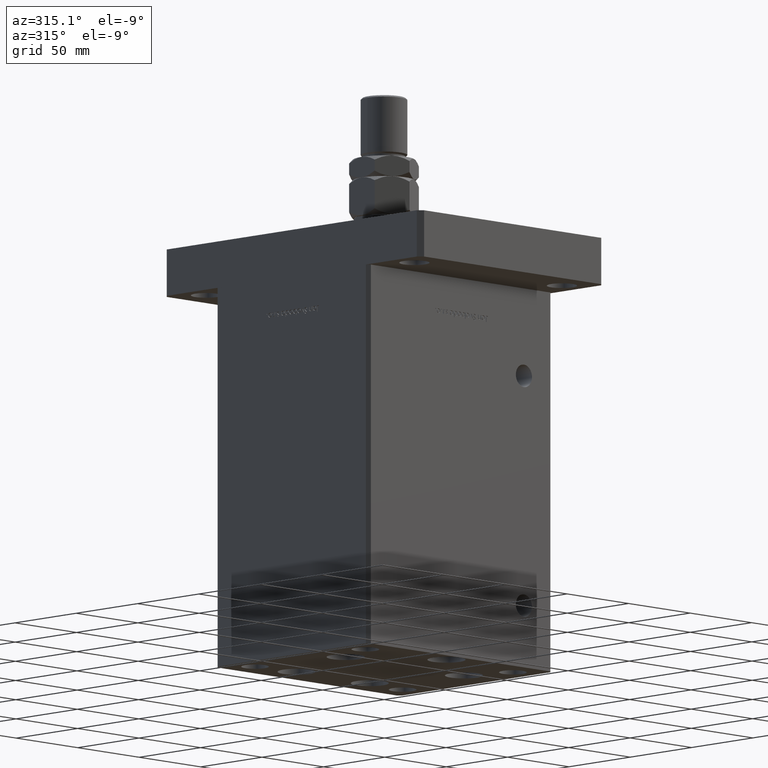
[diagram: clean part render]
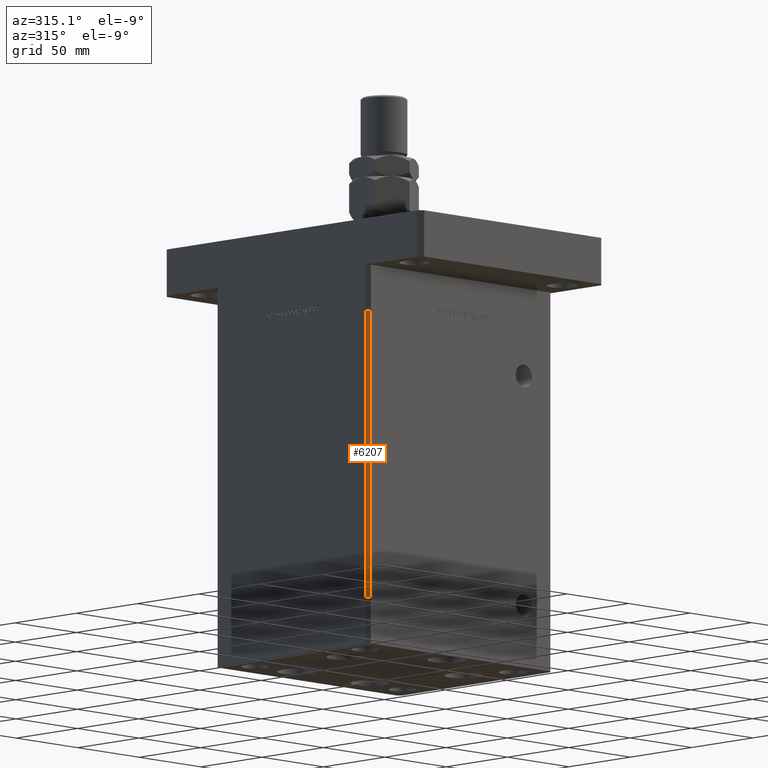
[diagram: same view with one face highlighted and labeled with its STEP entity id]
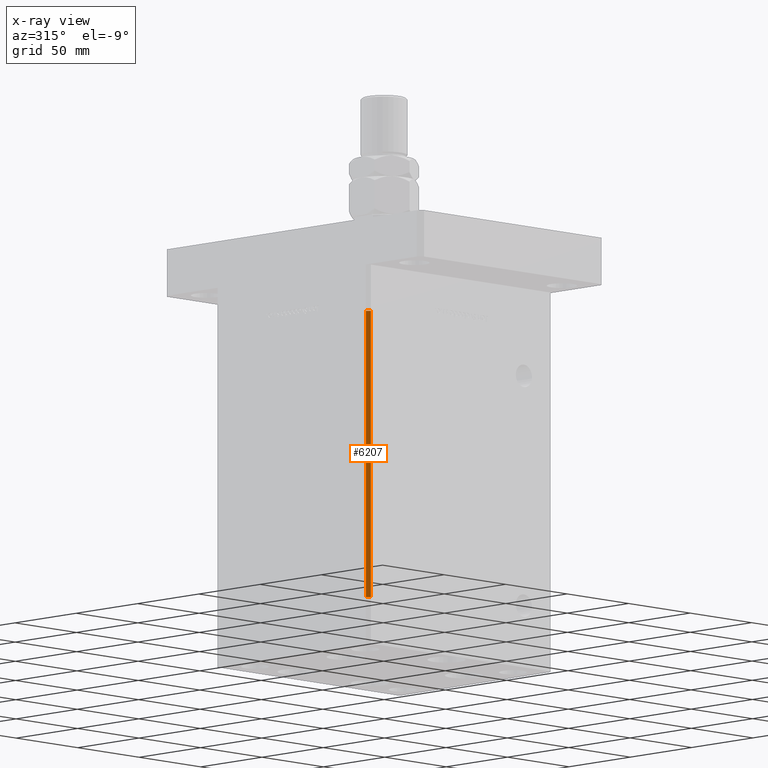
[diagram: x-ray of the same camera — body ghosted, the highlighted face saturated]
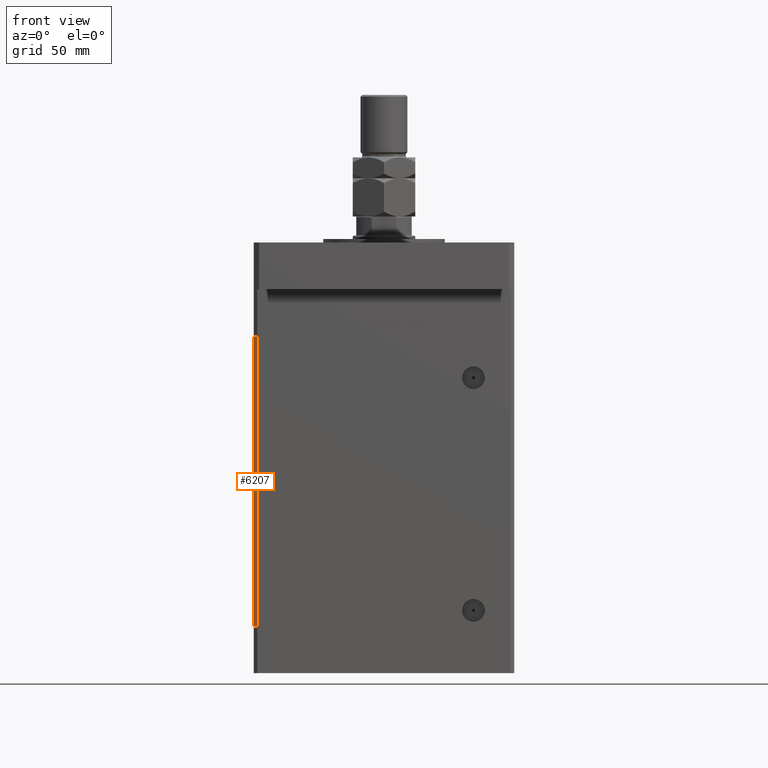
[diagram: same view with one face highlighted and labeled with its STEP entity id]
A machine part, auxiliary view. The second image highlights one B-rep face of the part: STEP entity #6207.
The next image is the same camera in x-ray: the body ghosted, the highlighted face saturated — about 0% of this face is hidden behind the body in this view.
A second angle (front view) of the same face is appended — the face is thin or edge-on in the first view.
In plain terms, the highlighted planar face has unit normal (0.7071, 0.7071, 0).
Its self-contained STEP definition (entity closure, byte-faithful):
#6035 = CARTESIAN_POINT ( 'NONE',  ( -74.99999999999998579, -60.50000000000000000, 167.0000000000000000 ) ) ;
#6207 = ADVANCED_FACE ( 'NONE', ( #10491 ), #31472, .F. ) ;
#6533 = LINE ( 'NONE', #31685, #39759 ) ;
#7060 = CARTESIAN_POINT ( 'NONE',  ( -72.99999999999998579, -62.50000000000000000, 0.000000000000000000 ) ) ;
#7933 = ORIENTED_EDGE ( 'NONE', *, *, #24203, .F. ) ;
#9353 = ORIENTED_EDGE ( 'NONE', *, *, #21757, .F. ) ;
#9958 = DIRECTION ( 'NONE',  ( -0.7071067811865474617, 0.7071067811865474617, 0.000000000000000000 ) ) ;
#10491 = FACE_OUTER_BOUND ( 'NONE', #21948, .T. ) ;
#11921 = VERTEX_POINT ( 'NONE', #17291 ) ;
#12691 = VERTEX_POINT ( 'NONE', #46367 ) ;
#14345 = DIRECTION ( 'NONE',  ( 0.7071067811865474617, -0.7071067811865474617, 0.000000000000000000 ) ) ;
#17291 = CARTESIAN_POINT ( 'NONE',  ( -72.99999999999998579, -62.50000000000000000, 167.0000000000000000 ) ) ;
#20070 = CARTESIAN_POINT ( 'NONE',  ( -74.99999999999998579, -60.50000000000000000, 167.0000000000000000 ) ) ;
#20254 = DIRECTION ( 'NONE',  ( 0.7071067811865474617, -0.7071067811865474617, 0.000000000000000000 ) ) ;
#20389 = LINE ( 'NONE', #40773, #21837 ) ;
#21757 = EDGE_CURVE ( 'NONE', #11921, #24038, #20389, .T. ) ;
#21837 = VECTOR ( 'NONE', #36329, 1000.000000000000000 ) ;
#21948 = EDGE_LOOP ( 'NONE', ( #33608, #9353, #7933, #35730 ) ) ;
#24038 = VERTEX_POINT ( 'NONE', #7060 ) ;
#24203 = EDGE_CURVE ( 'NONE', #12691, #11921, #6533, .T. ) ;
#25802 = EDGE_CURVE ( 'NONE', #12691, #25924, #50235, .T. ) ;
#25924 = VERTEX_POINT ( 'NONE', #34601 ) ;
#27250 = DIRECTION ( 'NONE',  ( 0.7071067811865475727, 0.7071067811865475727, -0.000000000000000000 ) ) ;
#29464 = VECTOR ( 'NONE', #20254, 1000.000000000000114 ) ;
#31472 = PLANE ( 'NONE',  #43700 ) ;
#31685 = CARTESIAN_POINT ( 'NONE',  ( -74.99999999999998579, -60.50000000000000000, 167.0000000000000000 ) ) ;
#33608 = ORIENTED_EDGE ( 'NONE', *, *, #45247, .T. ) ;
#34601 = CARTESIAN_POINT ( 'NONE',  ( -74.99999999999998579, -60.50000000000000000, 0.000000000000000000 ) ) ;
#35730 = ORIENTED_EDGE ( 'NONE', *, *, #25802, .T. ) ;
#36329 = DIRECTION ( 'NONE',  ( -0.000000000000000000, -0.000000000000000000, -1.000000000000000000 ) ) ;
#37391 = DIRECTION ( 'NONE',  ( -0.000000000000000000, -0.000000000000000000, -1.000000000000000000 ) ) ;
#39759 = VECTOR ( 'NONE', #14345, 1000.000000000000114 ) ;
#40773 = CARTESIAN_POINT ( 'NONE',  ( -72.99999999999998579, -62.50000000000000000, 167.0000000000000000 ) ) ;
#43700 = AXIS2_PLACEMENT_3D ( 'NONE', #6035, #27250, #9958 ) ;
#45247 = EDGE_CURVE ( 'NONE', #25924, #24038, #50696, .T. ) ;
#46367 = CARTESIAN_POINT ( 'NONE',  ( -74.99999999999998579, -60.50000000000000000, 167.0000000000000000 ) ) ;
#50136 = CARTESIAN_POINT ( 'NONE',  ( -74.99999999999998579, -60.50000000000000000, 0.000000000000000000 ) ) ;
#50235 = LINE ( 'NONE', #20070, #53936 ) ;
#50696 = LINE ( 'NONE', #50136, #29464 ) ;
#53936 = VECTOR ( 'NONE', #37391, 1000.000000000000000 ) ;